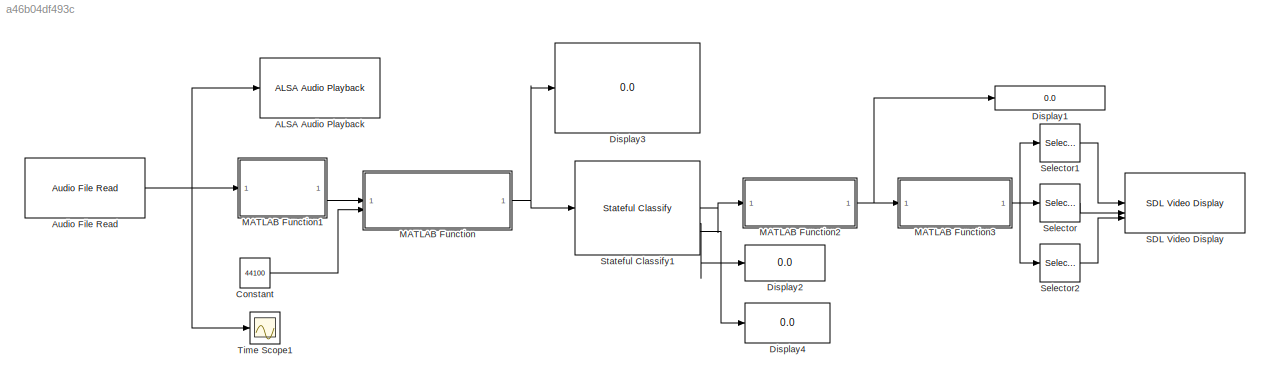
MODEL slx_a46b04df493c
KIND model
CONFIG AbsTol = auto
CONFIG EnableMultiTasking = on
CONFIG FixedStep = auto
CONFIG MaxStep = auto
CONFIG MinStep = auto
CONFIG RelTol = 1e-3
CONFIG SampleTimeConstraint = Unconstrained
CONFIG SolverName = FixedStepDiscrete
CONFIG StartTime = 0.0
CONFIG StopTime = 10.0
BLOCK [Reference] ALSA Audio Playback  REF=raspberrypiAVlib/ALSA Audio Playback
  SourceBlock = raspberrypiAVlib/ALSA Audio Playback
  SourceType = codertarget.raspi.internal.RaspiALSAAudioPlayback
BLOCK [Reference] Audio File Read  REF=raspberrypiAVlib/Audio File Read
  SourceBlock = raspberrypiAVlib/Audio File Read
  SourceType = codertarget.raspi.internal.RaspiAudioFileRead
BLOCK [Constant] Constant
  Value = 44100
BLOCK [Display] Display1
  Decimation = 1
BLOCK [Display] Display2
  Decimation = 1
BLOCK [Display] Display3
  Decimation = 1
BLOCK [Display] Display4
  Decimation = 1
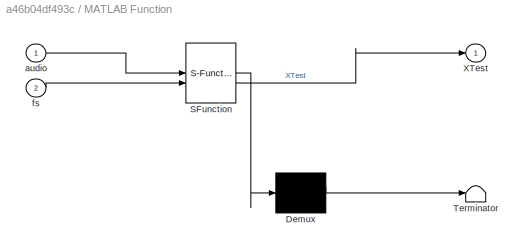
BLOCK [SubSystem] MATLAB Function
  ErrorFcn = Stateflow.Translate.translate
  PermitHierarchicalResolution = ExplicitOnly
  SFBlockType = MATLAB Function
  TreatAsAtomicUnit = on
BLOCK [Demux] MATLAB Function/ Demux 
  Outputs = 1
BLOCK [S-Function] MATLAB Function/ SFunction 
  EnableBusSupport = on
  FunctionName = sf_sfun
  PortCounts = [2 2]
  SFcnIsStateOwnerBlock = off
  SFunctionDeploymentMode = off
  Tag = Stateflow S-Function 2
BLOCK [Terminator] MATLAB Function/ Terminator 
BLOCK [Outport] MATLAB Function/XTest
BLOCK [Inport] MATLAB Function/audio
BLOCK [Inport] MATLAB Function/fs
  Port = 2
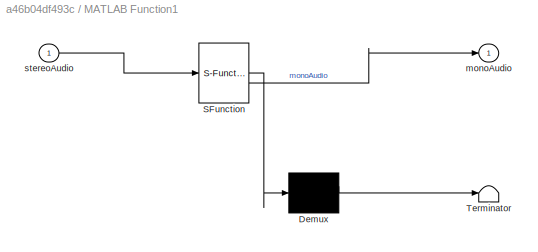
BLOCK [SubSystem] MATLAB Function1
  ErrorFcn = Stateflow.Translate.translate
  PermitHierarchicalResolution = ExplicitOnly
  SFBlockType = MATLAB Function
  TreatAsAtomicUnit = on
BLOCK [Demux] MATLAB Function1/ Demux 
  Outputs = 1
BLOCK [S-Function] MATLAB Function1/ SFunction 
  EnableBusSupport = on
  FunctionName = sf_sfun
  PortCounts = [1 2]
  SFcnIsStateOwnerBlock = off
  SFunctionDeploymentMode = off
  Tag = Stateflow S-Function 3
BLOCK [Terminator] MATLAB Function1/ Terminator 
BLOCK [Outport] MATLAB Function1/monoAudio
BLOCK [Inport] MATLAB Function1/stereoAudio
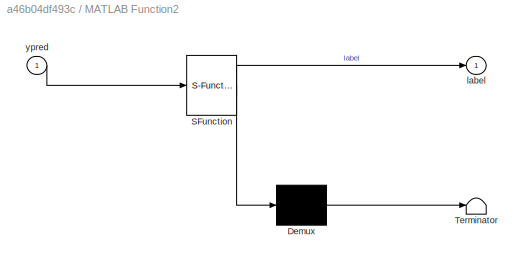
BLOCK [SubSystem] MATLAB Function2
  ErrorFcn = Stateflow.Translate.translate
  PermitHierarchicalResolution = ExplicitOnly
  SFBlockType = MATLAB Function
  TreatAsAtomicUnit = on
BLOCK [Demux] MATLAB Function2/ Demux 
  Outputs = 1
BLOCK [S-Function] MATLAB Function2/ SFunction 
  EnableBusSupport = on
  FunctionName = sf_sfun
  PortCounts = [1 2]
  SFcnIsStateOwnerBlock = off
  SFunctionDeploymentMode = off
  Tag = Stateflow S-Function 4
BLOCK [Terminator] MATLAB Function2/ Terminator 
BLOCK [Outport] MATLAB Function2/label
BLOCK [Inport] MATLAB Function2/ypred
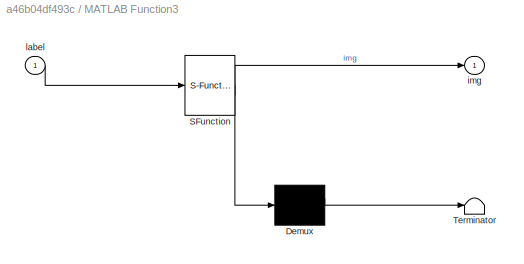
BLOCK [SubSystem] MATLAB Function3
  ErrorFcn = Stateflow.Translate.translate
  PermitHierarchicalResolution = ExplicitOnly
  SFBlockType = MATLAB Function
  TreatAsAtomicUnit = on
BLOCK [Demux] MATLAB Function3/ Demux 
  Outputs = 1
BLOCK [S-Function] MATLAB Function3/ SFunction 
  EnableBusSupport = on
  FunctionName = sf_sfun
  PortCounts = [1 2]
  SFcnIsStateOwnerBlock = off
  SFunctionDeploymentMode = off
  Tag = Stateflow S-Function 5
BLOCK [Terminator] MATLAB Function3/ Terminator 
BLOCK [Outport] MATLAB Function3/img
BLOCK [Inport] MATLAB Function3/label
BLOCK [Reference] SDL Video Display  REF=raspberrypiAVlib/SDL Video Display
  SourceBlock = raspberrypiAVlib/SDL Video Display
  SourceType = SDL Video Display
BLOCK [Selector] Selector
  IndexOptions = Select all,Select all,Index vector (dialog)
  Indices = [1 3],1,2
  InputPortWidth = 3
  NumberOfDimensions = 3
  OutputSizes = 1,1,1
BLOCK [Selector] Selector1
  IndexOptions = Select all,Select all,Index vector (dialog)
  Indices = [1 3],1,1
  InputPortWidth = 3
  NumberOfDimensions = 3
  OutputSizes = 1,1,1
BLOCK [Selector] Selector2
  IndexOptions = Select all,Select all,Index vector (dialog)
  Indices = [1 3],1,3
  InputPortWidth = 3
  NumberOfDimensions = 3
  OutputSizes = 1,1,1
BLOCK [Reference] Stateful Classify1  REF=deeplib/Stateful Classify
  SourceBlock = deeplib/Stateful Classify
  SourceType = Stateful Classify
BLOCK [Scope] Time Scope1
  DefaultConfigurationName = spbscopes.TimeScopeBlockCfg
  Floating = off
  NumInputPorts = 1
  ScopeSpecificationString = spbscopes.TimeScopeBlockCfg('CurrentConfiguration', extmgr.ConfigurationSet(extmgr.Configuration('Core','General UI',true),extmgr.Configuration('Core','Source UI',true),extmgr.Configuration('Sources','WiredSimulink',true,'DataLoggingVariableName','ScopeData1'),extmgr.Configuration('Visuals','Time Domain',true,'DisplayPropertyDefaults',struct('MinYLimReal','-3680.375','MaxYLimReal','3323.375','YLab...<+1573ch>
  UserDataPersistent = on
NET Audio File Read:1 -> ALSA Audio Playback:1, MATLAB Function1:1, Time Scope1:1
LINE Constant:1 -> MATLAB Function:2
LINE MATLAB Function1:1 -> MATLAB Function:1
NET MATLAB Function2:1 -> Display1:1, MATLAB Function3:1
NET MATLAB Function3:1 -> Selector1:1, Selector2:1, Selector:1
NET MATLAB Function:1 -> Display3:1, Stateful Classify1:1
LINE Selector1:1 -> SDL Video Display:1
LINE Selector2:1 -> SDL Video Display:3
LINE Selector:1 -> SDL Video Display:2
LINE Stateful Classify1:1 -> MATLAB Function2:1
LINE Stateful Classify1:2 -> Display2:1
LINE Stateful Classify1:3 -> Display4:1
note: NET lines group one-source signal fan-out (src -> all destinations, sorted); 1:1 wires keep LINE
CHART MATLAB Function1 states=1 transitions=1
  STATE_LABEL 'eML_blk_kernel()'
  STATE_LABEL 'SCRIPT:\nfunction monoAudio = stereoToMono(stereoAudio)\n    %#codegen  \n    % Ensure the input is not empty\n    if isempty(stereoAudio)\n        monoAudio = [];\n        return;\n    end\n    \n    % Check if the audio has two channels (stereo)\n    if size(stereoAudio, 2) > 1\n        % Convert to mono by averaging the two channels\n        monoAudio = mean(stereoAudio, 2);\n    else\n        % Already mono...<+60ch>'
CHART MATLAB Function2 states=1 transitions=1
  STATE_LABEL 'eML_blk_kernel()'
  STATE_LABEL 'SCRIPT:\nfunction label = processPrediction(ypred)\n    %#codegen\n    labelStr = string(ypred);\n\n    if labelStr == "x1_label"\n        label = "RPW";\n    elseif labelStr == "x0_label"\n        label = "NON-RPW";\n    else\n        label = "Unknown";\n    end\nend\n'
CHART MATLAB Function3 states=1 transitions=1
  STATE_LABEL 'eML_blk_kernel()'
  STATE_LABEL "SCRIPT:\nfunction img = labelToImage(label)\n%#codegen\nimg = uint8(zeros(240, 320, 3));\npersistent rpwImage noRpwImage\nif isempty(rpwImage)\n    temp1 = imread('rpw_detected.jpg');\n    temp2 = imread('no_rpw_detected.jpg');\n    % First rotate 90 degrees to the right (clockwise)\n    temp1 = rot90(temp1, -1);\n    temp2 = rot90(temp2, -1);\n    % Add horizontal flip to correct the text orientation\n    te...<+573ch>"
CHART MATLAB Function states=1 transitions=1
  STATE_LABEL 'eML_blk_kernel()'
  STATE_LABEL 'SCRIPT:\nfunction XTest = extractSpectFeatures(audio, fs) %#codegen\n    % Define Fixed Audio Length (2 sec of audio)\n    fixedAudioLength = 2 * fs;  % 2 seconds of audio\n\n    % Convert to Mono if Stereo\n    if size(audio, 2) > 1\n        audio = mean(audio, 2);\n    end\n\n    % Convert audio to double to avoid type mismatch\n    audio = double(audio);\n\n    % Preallocate Fixed-Length Audio (Avoid Variab...<+1550ch>'
CHART  states=0 transitions=0
CHART  states=0 transitions=0
CHART  states=0 transitions=0
CHART  states=0 transitions=0
